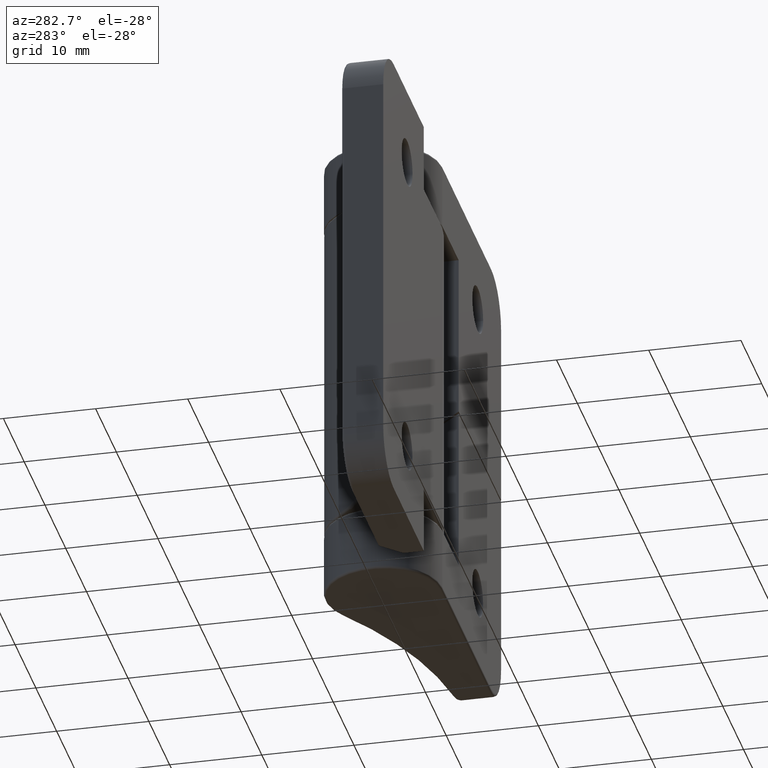
[diagram: clean part render]
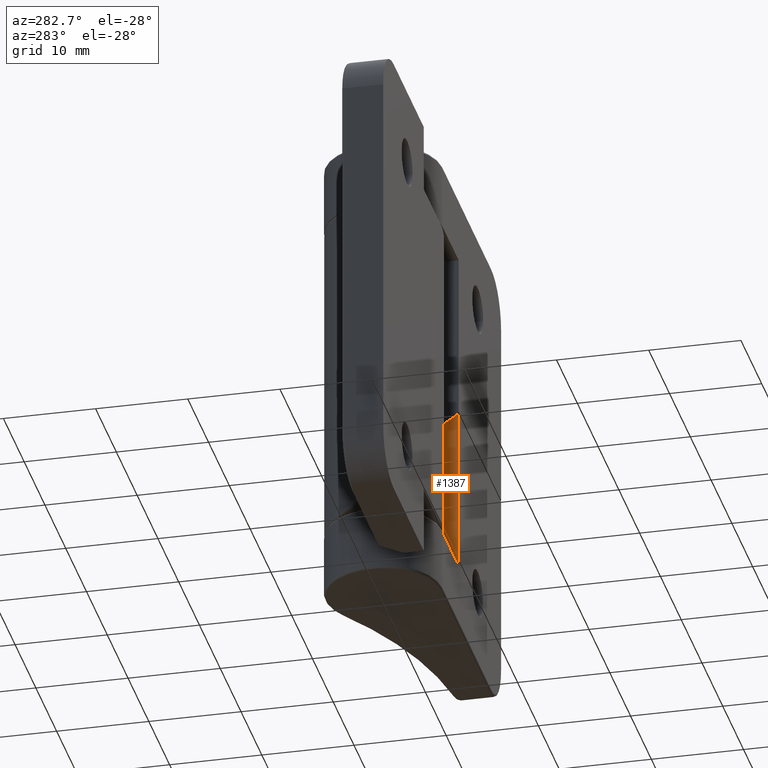
[diagram: same view with one face highlighted and labeled with its STEP entity id]
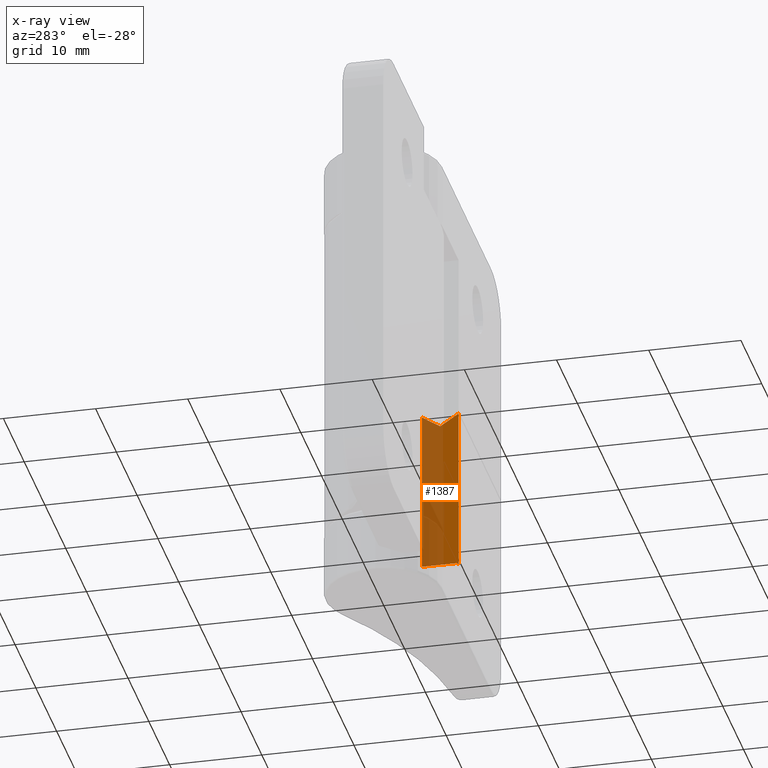
[diagram: x-ray of the same camera — body ghosted, the highlighted face saturated]
A machine part, auxiliary view. The second image highlights one B-rep face of the part: STEP entity #1387.
The next image is the same camera in x-ray: the body ghosted, the highlighted face saturated — about 58% of this face is hidden behind the body in this view.
In plain terms, the highlighted planar face has unit normal (1, 0, 0).
Its self-contained STEP definition (entity closure, byte-faithful):
#86=PLANE('',#1562);
#181=LINE('',#2518,#276);
#187=LINE('',#2557,#282);
#191=LINE('',#2596,#286);
#194=LINE('',#2604,#289);
#195=LINE('',#2605,#290);
#276=VECTOR('',#1938,17.9114627911625);
#282=VECTOR('',#1960,18.2114627911625);
#286=VECTOR('',#1986,3.7);
#289=VECTOR('',#1997,2.38537208837531);
#290=VECTOR('',#1998,2.38537208837532);
#413=FACE_OUTER_BOUND('',#510,.T.);
#510=EDGE_LOOP('',(#1285,#1286,#1287,#1288,#1289,#1290));
#593=CIRCLE('',#1551,0.3);
#705=VERTEX_POINT('',#2515);
#706=VERTEX_POINT('',#2517);
#712=VERTEX_POINT('',#2554);
#713=VERTEX_POINT('',#2556);
#716=VERTEX_POINT('',#2564);
#719=VERTEX_POINT('',#2603);
#886=EDGE_CURVE('',#706,#705,#181,.T.);
#897=EDGE_CURVE('',#712,#713,#187,.T.);
#901=EDGE_CURVE('',#713,#716,#593,.F.);
#908=EDGE_CURVE('',#716,#705,#191,.T.);
#911=EDGE_CURVE('',#712,#719,#194,.T.);
#912=EDGE_CURVE('',#719,#706,#195,.T.);
#1285=ORIENTED_EDGE('',*,*,#911,.T.);
#1286=ORIENTED_EDGE('',*,*,#912,.T.);
#1287=ORIENTED_EDGE('',*,*,#886,.T.);
#1288=ORIENTED_EDGE('',*,*,#908,.F.);
#1289=ORIENTED_EDGE('',*,*,#901,.F.);
#1290=ORIENTED_EDGE('',*,*,#897,.F.);
#1387=ADVANCED_FACE('',(#413),#86,.F.);
#1551=AXIS2_PLACEMENT_3D('',#2565,#1968,#1969);
#1562=AXIS2_PLACEMENT_3D('',#2602,#1995,#1996);
#1938=DIRECTION('',(0.,0.,1.));
#1960=DIRECTION('',(0.,0.,1.));
#1968=DIRECTION('center_axis',(-1.,-4.662353909187E-16,0.));
#1969=DIRECTION('ref_axis',(3.29678206547775E-16,-0.70710678118655,-0.707106781186545));
#1986=DIRECTION('',(-4.662353909187E-16,1.,0.));
#1995=DIRECTION('center_axis',(-1.,-4.662353909187E-16,0.));
#1996=DIRECTION('ref_axis',(0.,0.,1.));
#1997=DIRECTION('',(-3.90912087209217E-16,0.838443616300638,0.544988350595412));
#1998=DIRECTION('',(-3.90912087209216E-16,0.838443616300637,-0.544988350595415));
#2515=CARTESIAN_POINT('',(-7.8,-2.35,18.15));
#2517=CARTESIAN_POINT('',(-7.8,-2.35,0.238537208837524));
#2518=CARTESIAN_POINT('',(-7.8,-2.35,-9.075));
#2554=CARTESIAN_POINT('',(-7.8,-6.35000000000001,0.238537208837539));
#2556=CARTESIAN_POINT('',(-7.8,-6.35,18.45));
#2557=CARTESIAN_POINT('',(-7.8,-6.35,-9.075));
#2564=CARTESIAN_POINT('',(-7.8,-6.05,18.15));
#2565=CARTESIAN_POINT('Origin',(-7.8,-6.05,18.45));
#2596=CARTESIAN_POINT('',(-7.8,-6.35,18.15));
#2602=CARTESIAN_POINT('Origin',(-7.8,-6.35,-18.15));
#2603=CARTESIAN_POINT('',(-7.8,-4.35000000000001,1.53853720883753));
#2604=CARTESIAN_POINT('',(-7.79999999999999,-9.55124751695761,-1.84227367718489));
#2605=CARTESIAN_POINT('',(-7.8,0.445272121527029,-1.57838967015505));